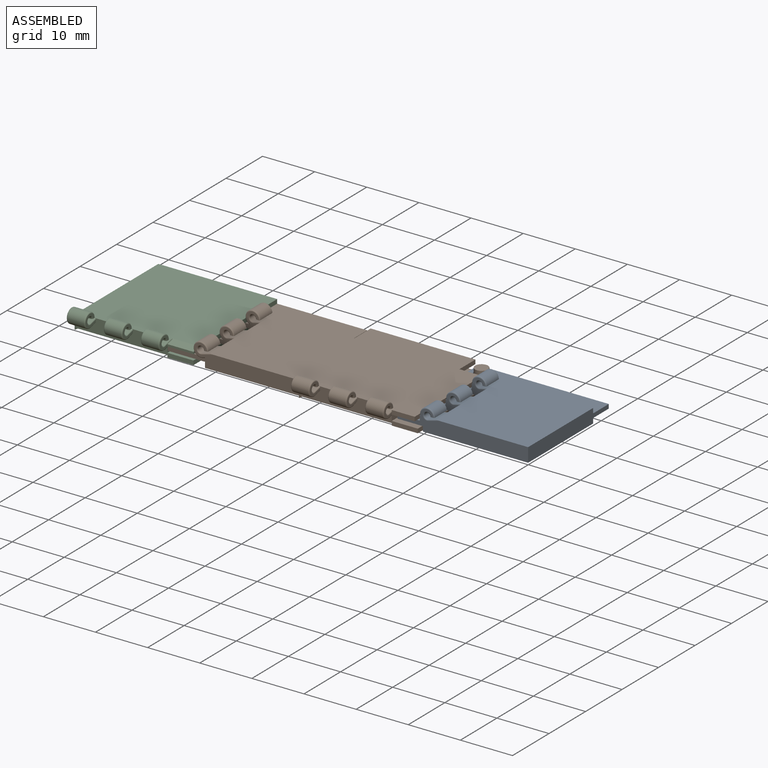
[diagram: assembled view]
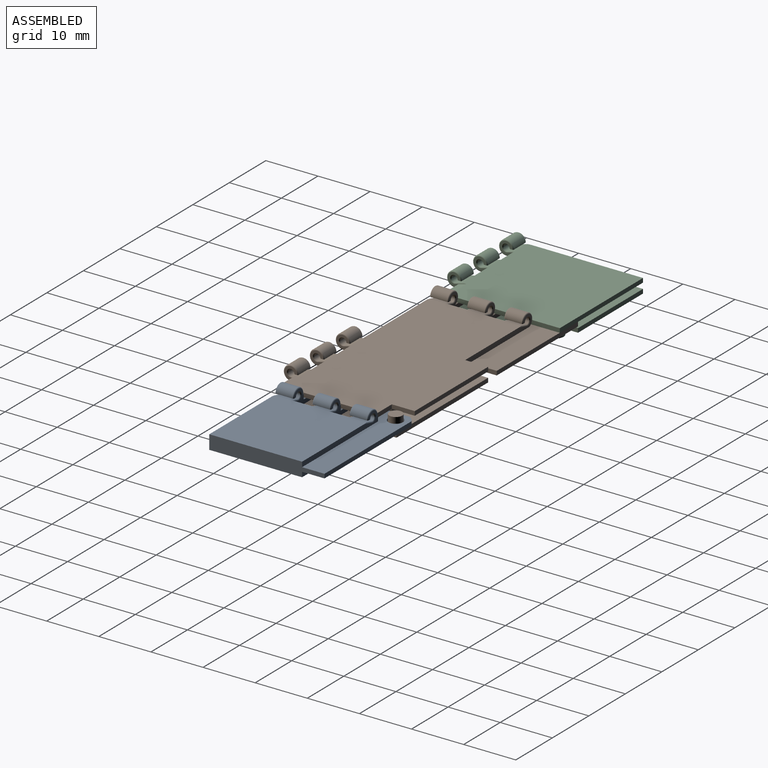
[diagram: assembled view, second angle]
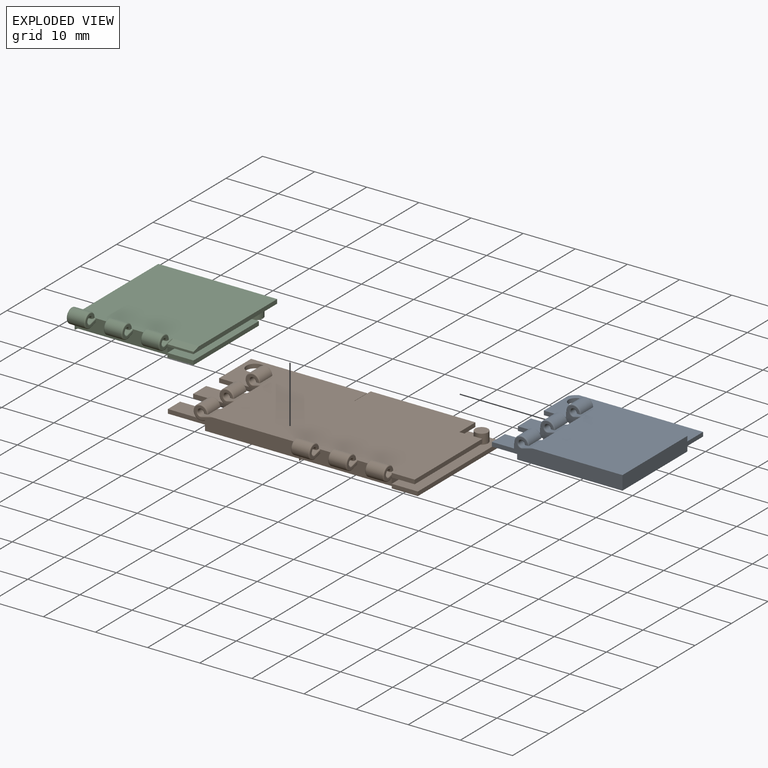
[diagram: exploded view]
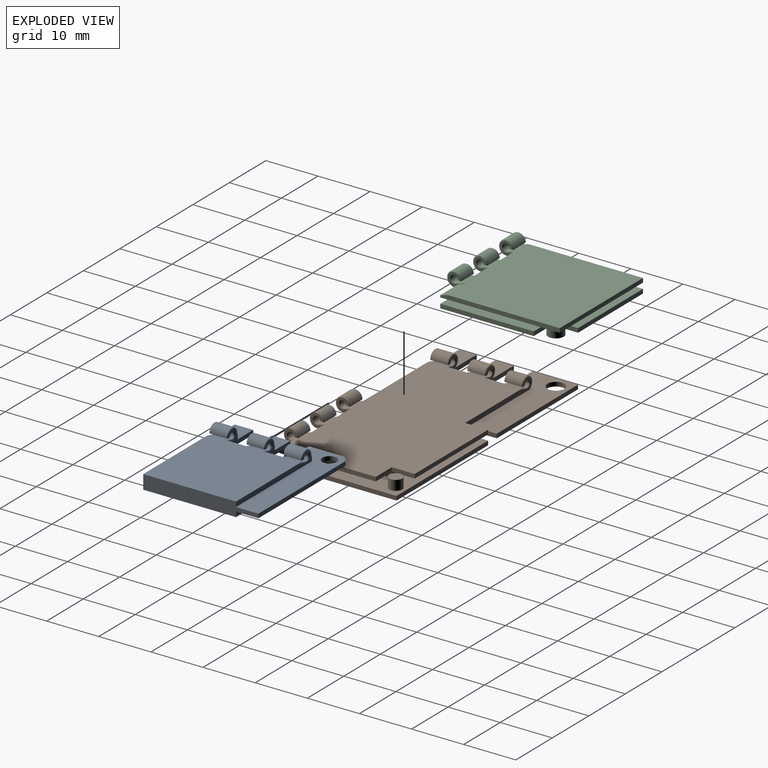
[diagram: exploded view, second angle]
ASSEMBLY  parts=3 mates=2
PART A: 75 faces, bbox 22.1x25.1x4.4 mm
  f0: plane 7.25x4.1mm, normal (-1,0,0), area 11.2mm2, adj f2,f5,f9,f10,f20,f21,f26,f37
  f1: plane 7.25x4.1mm, normal (1,0,0), area 11.2mm2, adj f2,f12,f16,f19,f27,f33,f44,f45
  f2: plane 20.2x17.8mm, normal (0,0,-1), area 342.5mm2, adj f0,f1,f4,f7,f16,f20,f39,f56
  f3: plane 0.14x0.02mm, normal (0,0,-1), area 0mm2, adj f8,f53,f74
  f4: plane 7.25x4.1mm, normal (1,0,0), area 11.2mm2, adj f2,f11,f15,f20,f25,f32,f40,f41
  f5: plane 25.05x7.86mm, normal (0,0,1), area 116.1mm2, adj f0,f6,f7,f14,f66,f67,f70,f71
  f6: cylinder r=2.5mm len=1.27mm, axis (0,0,1), area 1.4mm2, adj f5,f9,f70,f71
  f7: plane 22.1x2.7mm, normal (0,-1,0), area 51.5mm2, adj f2,f5,f9,f13,f14,f39,f59,f71
  f8: plane 7.25x4.1mm, normal (-1,0,0), area 7.1mm2, adj f3,f11,f16,f17,f18,f28,f32,f46
  f9: plane 25.05x7.86mm, normal (0,0,-1), area 118.2mm2, adj f0,f6,f7,f59,f67,f70,f71,f72
  f10: plane 3.58x0.23mm, normal (0,0,1), area 0.1mm2, adj f0,f14,f24,f26,f50,f66
  f11: plane 3.58x0.23mm, normal (0,0,1), area 0.1mm2, adj f4,f8,f22,f25,f28,f63
  f12: plane 3.58x0.23mm, normal (0,0,1), area 0.1mm2, adj f1,f23,f27,f29,f39,f65
  f13: plane 17.8x17.8mm, normal (0,0,1), area 316.8mm2, adj f7,f14,f16,f20,f30,f31,f36,f39
  f14: plane 20.8x2.35mm, normal (1,0,0), area 20mm2, adj f5,f7,f10,f13,f37,f50,f51,f52
  f15: cylinder r=0.2mm len=0.41mm, axis (0,-0.96,0.27), area 0mm2, adj f4,f20,f58
  f16: plane 3.98x2.72mm, normal (0,1,0), area 9.7mm2, adj f1,f2,f8,f13,f18,f19,f45,f47
  f17: torus R=1.2mm, axis (1,0,0), area 0.1mm2, adj f8,f18,f53,f56
  f18: cylinder r=0.2mm len=1.3mm, axis (0,0.96,-0.27), area 0.1mm2, adj f8,f16,f17,f56,f57
  f19: cylinder r=0.2mm len=0.41mm, axis (0,-0.96,0.27), area 0mm2, adj f1,f16,f55
  f20: plane 3.98x2.72mm, normal (0,1,0), area 9.6mm2, adj f0,f2,f4,f13,f15,f21,f40,f43
  f21: cylinder r=0.2mm len=0.41mm, axis (0,0.96,-0.27), area 0mm2, adj f0,f20,f54
  f22: cylinder r=1.4mm len=3.16mm, axis (-1,0,0), area 14.5mm2, adj f11,f25,f28,f32
  f23: cylinder r=1.4mm len=3.16mm, axis (-1,0,0), area 14.5mm2, adj f12,f27,f29,f33
  f24: cylinder r=1.4mm len=3.16mm, axis (-1,0,0), area 14.5mm2, adj f10,f26,f37,f50
  f25: torus R=1.2mm, axis (1,0,0), area 1.4mm2, adj f4,f11,f22,f32
  f26: torus R=1.2mm, axis (1,0,0), area 1.4mm2, adj f0,f10,f24,f37
  f27: torus R=1.2mm, axis (1,0,0), area 1.4mm2, adj f1,f12,f23,f33
  f28: torus R=1.2mm, axis (1,0,0), area 1.4mm2, adj f8,f11,f22,f32
  f29: torus R=1.2mm, axis (1,0,0), area 1.4mm2, adj f12,f23,f33,f39
  f30: plane 3.16x1.45mm, normal (0,0.25,0.97), area 4.7mm2, adj f13,f34,f40,f47
  f31: plane 3.16x1.45mm, normal (0,0.25,0.97), area 4.7mm2, adj f13,f35,f45,f49
  f32: plane 3.56x0.8mm, normal (0,0,-1), area 2.8mm2, adj f4,f8,f22,f25,f28,f34,f41,f46
  f33: plane 3.56x0.8mm, normal (0,0,-1), area 2.8mm2, adj f1,f23,f27,f29,f35,f39,f44,f48
  f34: cylinder r=0.6mm len=3.16mm, axis (-1,0,0), area 9.4mm2, adj f30,f32,f41,f46
  f35: cylinder r=0.6mm len=3.16mm, axis (-1,0,0), area 9.4mm2, adj f31,f33,f44,f48
  f36: plane 3.16x1.45mm, normal (0,0.25,0.97), area 4.7mm2, adj f13,f38,f43,f52
  f37: plane 3.56x0.8mm, normal (0,0,-1), area 2.8mm2, adj f0,f14,f24,f26,f38,f42,f50,f51
  f38: cylinder r=0.6mm len=3.16mm, axis (-1,0,0), area 9.4mm2, adj f36,f37,f42,f51
  f39: plane 25.05x4.1mm, normal (-1,0,0), area 59.2mm2, adj f2,f7,f12,f13,f29,f33,f48,f49
  f40: cylinder r=0.2mm len=1.5mm, axis (0,0.97,-0.25), area 0.5mm2, adj f4,f20,f30,f41
  f41: torus R=0.8mm, axis (1,0,0), area 1mm2, adj f4,f32,f34,f40
  f42: torus R=0.8mm, axis (1,0,0), area 1mm2, adj f0,f37,f38,f43
  f43: cylinder r=0.2mm len=1.5mm, axis (0,-0.97,0.25), area 0.5mm2, adj f0,f20,f36,f42
  f44: torus R=0.8mm, axis (1,0,0), area 1mm2, adj f1,f33,f35,f45
  f45: cylinder r=0.2mm len=1.5mm, axis (0,0.97,-0.25), area 0.5mm2, adj f1,f16,f31,f44
  f46: torus R=0.8mm, axis (1,0,0), area 1mm2, adj f8,f32,f34,f47
  f47: cylinder r=0.2mm len=1.5mm, axis (0,-0.97,0.25), area 0.5mm2, adj f8,f16,f30,f46
  f48: torus R=0.8mm, axis (1,0,0), area 1mm2, adj f33,f35,f39,f49
  f49: cylinder r=0.2mm len=2.23mm, axis (0,-0.97,0.25), area 0.6mm2, adj f13,f31,f39,f48
  f50: torus R=1.2mm, axis (1,0,0), area 1.4mm2, adj f10,f14,f24,f37
  f51: torus R=0.8mm, axis (1,0,0), area 1mm2, adj f14,f37,f38,f52
  f52: cylinder r=0.2mm len=2.23mm, axis (0,0.97,-0.25), area 0.6mm2, adj f13,f14,f36,f51
  f53: extruded ~1.9x0.13mm, area 0.2mm2, adj f3,f8,f17,f56
  f54: plane 0.39x0.04mm, normal (0,0,1), area 0mm2, adj f0,f20,f21
  f55: plane 0.39x0.04mm, normal (0,0,1), area 0mm2, adj f1,f16,f19
  f56: plane 2.4x2mm, normal (-1,0,0), area 4.2mm2, adj f2,f16,f17,f18,f53,f57
  f57: plane 0.11x0.02mm, normal (0,0,1), area 0mm2, adj f16,f18,f56
  f58: plane 0.39x0.04mm, normal (0,0,1), area 0mm2, adj f4,f15,f20
  f59: plane 20.2x0.95mm, normal (1,0,0), area 19.2mm2, adj f2,f7,f9,f72
  f60: plane 4.85x3.56mm, normal (0,0,-1), area 17.3mm2, adj f1,f39,f68,f73
  f61: plane 4.85x3.56mm, normal (0,0,-1), area 17.3mm2, adj f4,f8,f69,f74
  f62: plane 4.25x3.56mm, normal (0,0,1), area 15.1mm2, adj f4,f8,f63,f69
  f63: plane 3.56x0.95mm, normal (0,1,0), area 3.4mm2, adj f4,f8,f11,f62
  f64: plane 4.25x3.56mm, normal (0,0,1), area 15.1mm2, adj f1,f39,f65,f68
  f65: plane 3.56x0.95mm, normal (0,1,0), area 3.4mm2, adj f1,f12,f39,f64
  f66: plane 3.56x0.95mm, normal (0,1,0), area 3.4mm2, adj f0,f5,f10,f14
  f67: cylinder r=1.4mm len=2.8mm, axis (0,0,1), area 7mm2, adj f5,f9
  f68: plane 3.56x0.8mm, normal (0,1,0), area 2.8mm2, adj f1,f39,f60,f64
  f69: plane 3.56x0.8mm, normal (0,1,0), area 2.8mm2, adj f4,f8,f61,f62
  f70: plane 6.65x0.8mm, normal (0,1,0), area 5.3mm2, adj f0,f5,f6,f9
  f71: plane 23.78x0.8mm, normal (1,0,0), area 19mm2, adj f5,f6,f7,f9
  f72: plane 3.56x0.95mm, normal (0,1,0), area 3.4mm2, adj f0,f2,f9,f59
  f73: plane 3.56x0.95mm, normal (0,1,0), area 3.4mm2, adj f1,f2,f39,f60
  f74: plane 3.56x0.95mm, normal (0,1,0), area 3.4mm2, adj f2,f3,f4,f8,f61
PART B: 133 faces, bbox 48.9x26.4x4.7 mm
  f0: extruded ~0.95x0.73mm, area 0.8mm2, adj f70,f84,f105,f123
  f1: plane 25.09x0.8mm, normal (0,-1,0), area 20.1mm2, adj f105,f108,f111,f125
  f2: plane 20.09x4.4mm, normal (0,0,-1), area 88.4mm2, adj f3,f22,f70,f124
  f3: plane 20.09x0.8mm, normal (0,-1,0), area 16.1mm2, adj f2,f4,f22,f124
  f4: plane 40x22.93mm, normal (0,0,1), area 803.5mm2, adj f3,f19,f21,f22,f25,f26,f35,f43
  f5: plane 3.16x0.53mm, normal (-0.27,0,-0.96), area 1.7mm2, adj f8,f84,f96,f122
  f6: cylinder r=1.4mm len=3.16mm, axis (0,-1,0), area 18.1mm2, adj f7,f75,f95,f122
  f7: torus R=1.2mm, axis (0,1,0), area 1.8mm2, adj f6,f75,f83,f122
  f8: cylinder r=0.2mm len=1.31mm, axis (-0.96,0,0.27), area 0.3mm2, adj f5,f83,f84,f122
  f9: plane 3.16x0.53mm, normal (-0.27,0,-0.96), area 1.7mm2, adj f12,f84,f100,f120
  f10: cylinder r=1.4mm len=3.16mm, axis (0,-1,0), area 18.1mm2, adj f11,f79,f99,f118
  f11: torus R=1.2mm, axis (0,1,0), area 1.8mm2, adj f10,f79,f85,f118
  f12: cylinder r=0.2mm len=1.31mm, axis (0.96,0,-0.27), area 0.3mm2, adj f9,f84,f85,f120
  f13: plane 3.16x0.53mm, normal (-0.27,0,-0.96), area 1.7mm2, adj f16,f18,f84,f116
  f14: cylinder r=1.4mm len=3.16mm, axis (0,-1,0), area 18.1mm2, adj f15,f17,f74,f115
  f15: torus R=1.2mm, axis (0,1,0), area 1.8mm2, adj f14,f74,f86,f115
  f16: cylinder r=0.2mm len=1.31mm, axis (-0.96,0,0.27), area 0.3mm2, adj f13,f84,f86,f116
  f17: torus R=1.2mm, axis (0,1,0), area 1.8mm2, adj f14,f74,f82,f115
  f18: cylinder r=0.2mm len=1.31mm, axis (0.96,0,-0.27), area 0.3mm2, adj f13,f82,f84,f116
  f19: plane 4.4x0.8mm, normal (0,1,0), area 3.5mm2, adj f4,f20,f23,f109,f114
  f20: plane 18.53x4.4mm, normal (0,0,-1), area 81.5mm2, adj f19,f21,f40,f114
  f21: plane 4.4x0.8mm, normal (0,-1,0), area 3.5mm2, adj f4,f20,f22,f114
  f22: plane 4.4x0.8mm, normal (-1,0,0), area 3.5mm2, adj f2,f3,f4,f21
  f23: plane 2.4x2.4mm, normal (-1,0,0), area 2.2mm2, adj f19,f32,f62,f63,f64,f65
  f24: plane 4.1x2.8mm, normal (1,0,0), area 4mm2, adj f38,f66,f67,f68,f69,f81,f104,f105
  f25: plane 3.16x1.45mm, normal (0,0.25,0.97), area 4.7mm2, adj f4,f33,f48,f59
  f26: plane 3.16x1.45mm, normal (0,0.25,0.97), area 4.7mm2, adj f4,f34,f61,f65
  f27: plane 3.16x1.22mm, normal (0,-0.27,-0.96), area 4mm2, adj f29,f43,f51,f53
  f28: plane 3.16x1.22mm, normal (0,-0.27,-0.96), area 4mm2, adj f30,f43,f55,f63
  f29: cylinder r=1.4mm len=3.16mm, axis (-1,0,0), area 22mm2, adj f27,f31,f50,f52
  f30: cylinder r=1.4mm len=3.16mm, axis (-1,0,0), area 22mm2, adj f28,f32,f54,f62
  f31: plane 3.56x0.8mm, normal (0,0,-1), area 2.8mm2, adj f29,f33,f41,f45,f49,f50,f52,f58
  f32: plane 3.56x0.8mm, normal (0,0,-1), area 2.8mm2, adj f23,f30,f34,f42,f54,f60,f62,f64
  f33: cylinder r=0.6mm len=3.16mm, axis (-1,0,0), area 9.4mm2, adj f25,f31,f49,f58
  f34: cylinder r=0.6mm len=3.16mm, axis (-1,0,0), area 9.4mm2, adj f26,f32,f60,f64
  f35: plane 3.16x1.45mm, normal (0,0.25,0.97), area 4.7mm2, adj f4,f39,f57,f69
  f36: plane 3.16x1.22mm, normal (0,-0.27,-0.96), area 4mm2, adj f37,f43,f47,f67
  f37: cylinder r=1.4mm len=3.16mm, axis (-1,0,0), area 22mm2, adj f36,f38,f46,f66
  f38: plane 3.56x0.8mm, normal (0,0,-1), area 2.8mm2, adj f24,f37,f39,f44,f46,f56,f66,f68
  f39: cylinder r=0.6mm len=3.16mm, axis (-1,0,0), area 9.4mm2, adj f35,f38,f56,f68
  f40: plane 18.53x1.1mm, normal (-1,0,0), area 20.4mm2, adj f20,f70,f103,f108
  f41: plane 2.8x2.4mm, normal (-1,0,0), area 2.5mm2, adj f31,f43,f52,f53,f58,f59
  f42: plane 2.8x2.4mm, normal (1,0,0), area 2.5mm2, adj f32,f43,f54,f55,f60,f61
  f43: plane 17.42x2.72mm, normal (0,1,0), area 38.8mm2, adj f4,f27,f28,f36,f41,f42,f44,f45
  f44: plane 2.8x2.4mm, normal (-1,0,0), area 2.5mm2, adj f38,f43,f46,f47,f56,f57
  f45: plane 2.8x2.4mm, normal (1,0,0), area 2.5mm2, adj f31,f43,f48,f49,f50,f51
  f46: torus R=1.2mm, axis (1,0,0), area 2.1mm2, adj f37,f38,f44,f47
  f47: cylinder r=0.2mm len=1.33mm, axis (0,0.96,-0.27), area 0.4mm2, adj f36,f43,f44,f46
  f48: cylinder r=0.2mm len=1.5mm, axis (0,0.97,-0.25), area 0.5mm2, adj f25,f43,f45,f49
  f49: torus R=0.8mm, axis (1,0,0), area 1mm2, adj f31,f33,f45,f48
  f50: torus R=1.2mm, axis (1,0,0), area 2.1mm2, adj f29,f31,f45,f51
  f51: cylinder r=0.2mm len=1.33mm, axis (0,-0.96,0.27), area 0.4mm2, adj f27,f43,f45,f50
  f52: torus R=1.2mm, axis (1,0,0), area 2.1mm2, adj f29,f31,f41,f53
  f53: cylinder r=0.2mm len=1.33mm, axis (0,0.96,-0.27), area 0.4mm2, adj f27,f41,f43,f52
  f54: torus R=1.2mm, axis (1,0,0), area 2.1mm2, adj f30,f32,f42,f55
  f55: cylinder r=0.2mm len=1.33mm, axis (0,-0.96,0.27), area 0.4mm2, adj f28,f42,f43,f54
  f56: torus R=0.8mm, axis (1,0,0), area 1mm2, adj f38,f39,f44,f57
  f57: cylinder r=0.2mm len=1.5mm, axis (0,-0.97,0.25), area 0.5mm2, adj f35,f43,f44,f56
  f58: torus R=0.8mm, axis (1,0,0), area 1mm2, adj f31,f33,f41,f59
  f59: cylinder r=0.2mm len=1.5mm, axis (0,-0.97,0.25), area 0.5mm2, adj f25,f41,f43,f58
  f60: torus R=0.8mm, axis (1,0,0), area 1mm2, adj f32,f34,f42,f61
  f61: cylinder r=0.2mm len=1.5mm, axis (0,0.97,-0.25), area 0.5mm2, adj f26,f42,f43,f60
  f62: torus R=1.2mm, axis (1,0,0), area 2.1mm2, adj f23,f30,f32,f63
  f63: cylinder r=0.2mm len=1.27mm, axis (0,0.96,-0.27), area 0.3mm2, adj f23,f28,f62,f103
  f64: torus R=0.8mm, axis (1,0,0), area 1mm2, adj f23,f32,f34,f65
  f65: cylinder r=0.2mm len=2.23mm, axis (0,-0.97,0.25), area 0.6mm2, adj f4,f23,f26,f64,f109
  f66: torus R=1.2mm, axis (1,0,0), area 2.1mm2, adj f24,f37,f38,f67
  f67: cylinder r=0.2mm len=1.27mm, axis (0,-0.96,0.27), area 0.3mm2, adj f24,f36,f66,f104
  f68: torus R=0.8mm, axis (1,0,0), area 1mm2, adj f24,f38,f39,f69
  f69: cylinder r=0.2mm len=2.23mm, axis (0,0.97,-0.25), area 0.6mm2, adj f4,f24,f35,f68,f71
  f70: plane 38.4x4.1mm, normal (0,-1,0), area 55.8mm2, adj f0,f2,f4,f40,f75,f95,f96,f97
  f71: plane 0.79x0.21mm, normal (-1,0,0), area 0.1mm2, adj f4,f69,f81
  f72: plane 3.16x1.45mm, normal (0.25,0,0.97), area 4.7mm2, adj f4,f76,f87,f92
  f73: plane 3.16x1.45mm, normal (0.25,0,0.97), area 4.7mm2, adj f4,f77,f94,f98
  f74: plane 3.56x0.8mm, normal (0,0,-1), area 2.8mm2, adj f14,f15,f17,f76,f82,f86,f88,f91
  f75: plane 3.56x0.8mm, normal (0,0,-1), area 2.8mm2, adj f6,f7,f70,f77,f83,f93,f95,f97
  f76: cylinder r=0.6mm len=3.16mm, axis (0,-1,0), area 9.4mm2, adj f72,f74,f88,f91
  f77: cylinder r=0.6mm len=3.16mm, axis (0,-1,0), area 9.4mm2, adj f73,f75,f93,f97
  f78: plane 3.16x1.45mm, normal (0.25,0,0.97), area 4.7mm2, adj f4,f80,f90,f102
  f79: plane 3.56x0.8mm, normal (0,0,-1), area 2.8mm2, adj f10,f11,f80,f81,f85,f89,f99,f101
  f80: cylinder r=0.6mm len=3.16mm, axis (0,-1,0), area 9.4mm2, adj f78,f79,f89,f101
  f81: plane 20.6x4.1mm, normal (0,1,0), area 52mm2, adj f4,f24,f71,f79,f99,f100,f101,f102
  f82: plane 8x3.15mm, normal (0,-1,0), area 8.9mm2, adj f17,f18,f74,f84,f91,f92,f115,f116
  f83: plane 8x3.15mm, normal (0,1,0), area 8.9mm2, adj f7,f8,f75,f84,f93,f94,f122,f123
  f84: plane 17.42x2.72mm, normal (1,0,0), area 30.6mm2, adj f0,f4,f5,f8,f9,f12,f13,f16
  f85: plane 8x3.15mm, normal (0,-1,0), area 8.9mm2, adj f11,f12,f79,f84,f89,f90,f118,f120
  f86: plane 8x3.15mm, normal (0,1,0), area 8.9mm2, adj f15,f16,f74,f84,f87,f88,f115,f116
  f87: cylinder r=0.2mm len=1.5mm, axis (0.97,0,-0.25), area 0.5mm2, adj f72,f84,f86,f88
  f88: torus R=0.8mm, axis (0,1,0), area 1mm2, adj f74,f76,f86,f87
  f89: torus R=0.8mm, axis (0,1,0), area 1mm2, adj f79,f80,f85,f90
  f90: cylinder r=0.2mm len=1.5mm, axis (-0.97,0,0.25), area 0.5mm2, adj f78,f84,f85,f89
  f91: torus R=0.8mm, axis (0,1,0), area 1mm2, adj f74,f76,f82,f92
  f92: cylinder r=0.2mm len=1.5mm, axis (-0.97,0,0.25), area 0.5mm2, adj f72,f82,f84,f91
  f93: torus R=0.8mm, axis (0,1,0), area 1mm2, adj f75,f77,f83,f94
  f94: cylinder r=0.2mm len=1.5mm, axis (0.97,0,-0.25), area 0.5mm2, adj f73,f83,f84,f93
  f95: torus R=1.2mm, axis (0,1,0), area 1.8mm2, adj f6,f70,f75,f122
  f96: cylinder r=0.2mm len=1.26mm, axis (0.96,0,-0.27), area 0.2mm2, adj f5,f70,f107,f122
  f97: torus R=0.8mm, axis (0,1,0), area 1mm2, adj f70,f75,f77,f98
  f98: cylinder r=0.2mm len=2.23mm, axis (-0.97,0,0.25), area 0.6mm2, adj f4,f70,f73,f97
  f99: torus R=1.2mm, axis (0,1,0), area 2.1mm2, adj f10,f79,f81,f100,f119
  f100: cylinder r=0.2mm len=1.27mm, axis (-0.96,0,0.27), area 0.3mm2, adj f9,f81,f99,f106,f119
  f101: torus R=0.8mm, axis (0,1,0), area 1mm2, adj f79,f80,f81,f102
  f102: cylinder r=0.2mm len=2.23mm, axis (0.97,0,-0.25), area 0.6mm2, adj f4,f78,f81,f101
  f103: extruded ~1.9x0.73mm, area 1.5mm2, adj f40,f43,f63,f105,f110
  f104: extruded ~1.9x0.73mm, area 1.5mm2, adj f24,f43,f67,f105
  f105: plane 41.33x22.93mm, normal (0,0,-1), area 836.9mm2, adj f0,f1,f24,f43,f70,f81,f84,f103
  f106: extruded ~1.9x0.73mm, area 1.5mm2, adj f81,f84,f100,f105,f119
  f107: extruded ~0.73x0.2mm, area 0.1mm2, adj f70,f84,f96,f122
  f108: plane 25.09x22.93mm, normal (0,0,1), area 198.2mm2, adj f1,f40,f70,f110,f111,f112,f125
  f109: plane 1.52x0.4mm, normal (1,0,0), area 0.3mm2, adj f4,f19,f65
  f110: plane 5x0.8mm, normal (0,1,0), area 4mm2, adj f103,f105,f108,f111
  f111: plane 22.93x0.8mm, normal (-1,0,0), area 18.3mm2, adj f1,f105,f108,f110
  f112: cylinder r=1.25mm len=2.5mm, axis (0,0,-1), area 14.9mm2, adj f108,f113
  f113: plane 2.5x2.5mm, normal (0,0,1), area 4.9mm2, adj f112
  f114: plane 18.53x0.8mm, normal (-1,0,0), area 14.8mm2, adj f4,f19,f20,f21
  f115: plane 6.21x3.71mm, normal (0,0,1), area 20mm2, adj f14,f15,f17,f82,f86,f129
  f116: plane 3.56x1.26mm, normal (0,0,1), area 1.9mm2, adj f13,f16,f18,f82,f84,f86
  f117: plane 8x3.56mm, normal (0,0,-1), area 28.5mm2, adj f82,f84,f86,f129
  f118: plane 6.21x3.51mm, normal (0,0,1), area 18.8mm2, adj f10,f11,f85,f119,f130
  f119: plane 8x0.8mm, normal (0,1,0), area 6.1mm2, adj f99,f100,f106,f118,f120,f121,f130
  f120: plane 3.36x1.26mm, normal (0,0,1), area 1.8mm2, adj f9,f12,f84,f85,f119
  f121: plane 8x3.36mm, normal (0,0,-1), area 26.9mm2, adj f84,f85,f119,f130
  f122: plane 22.57x9.06mm, normal (0,0,1), area 129.1mm2, adj f5,f6,f7,f8,f70,f83,f84,f95
  f123: plane 22.27x8.76mm, normal (0,0,-1), area 135.7mm2, adj f0,f70,f83,f84,f126,f127,f128,f131
  f124: plane 4.4x0.8mm, normal (1,0,0), area 3.5mm2, adj f2,f3,f4,f70
  f125: plane 4.4x0.8mm, normal (1,0,0), area 3.5mm2, adj f1,f70,f105,f108
  f126: plane 5.2x0.8mm, normal (-1,0,0), area 4.2mm2, adj f70,f122,f123,f127
  f127: plane 22.27x0.8mm, normal (0,-1,0), area 17.8mm2, adj f122,f123,f126,f132
  f128: cylinder r=1.65mm len=3.3mm, axis (0,0,1), area 8.3mm2, adj f122,f123
  f129: plane 3.56x0.8mm, normal (1,0,0), area 2.8mm2, adj f82,f86,f115,f117
  f130: plane 3.36x0.8mm, normal (1,0,0), area 2.7mm2, adj f85,f118,f119,f121
  f131: plane 3.36x0.8mm, normal (1,0,0), area 2.7mm2, adj f83,f122,f123,f132
  f132: plane 5.4x0.8mm, normal (1,0,0), area 4.3mm2, adj f122,f123,f127,f131
PART C: 66 faces, bbox 22.8x25.3x4.4 mm
  f0: plane 17.8x5mm, normal (0,0,1), area 89mm2, adj f2,f3,f61,f62
  f1: plane 17.93x5mm, normal (0,0,1), area 89.7mm2, adj f56,f58,f60,f63
  f2: plane 17.8x0.8mm, normal (0,-1,0), area 14.2mm2, adj f0,f3,f54,f62
  f3: plane 25x4.1mm, normal (1,0,0), area 58.3mm2, adj f0,f2,f17,f20,f48,f49,f50,f51
  f4: plane 5x0.4mm, normal (0,1,0), area 2mm2, adj f5,f22,f57,f59
  f5: plane 22.93x0.8mm, normal (-1,0,0), area 18mm2, adj f4,f17,f55,f57,f59
  f6: plane 3.16x1.45mm, normal (0,0.25,0.97), area 4.7mm2, adj f14,f17,f30,f41
  f7: plane 3.16x1.45mm, normal (0,0.25,0.97), area 4.7mm2, adj f15,f17,f43,f47
  f8: plane 3.16x1.22mm, normal (0,-0.27,-0.96), area 4mm2, adj f10,f25,f33,f35
  f9: plane 3.16x1.22mm, normal (0,-0.27,-0.96), area 4mm2, adj f11,f25,f37,f45
  f10: cylinder r=1.4mm len=3.16mm, axis (-1,0,0), area 22mm2, adj f8,f12,f32,f34
  f11: cylinder r=1.4mm len=3.16mm, axis (-1,0,0), area 22mm2, adj f9,f13,f36,f44
  f12: plane 3.56x0.8mm, normal (0,0,-1), area 2.8mm2, adj f10,f14,f23,f27,f31,f32,f34,f40
  f13: plane 3.56x0.8mm, normal (0,0,-1), area 2.8mm2, adj f11,f15,f22,f24,f36,f42,f44,f46
  f14: cylinder r=0.6mm len=3.16mm, axis (-1,0,0), area 9.4mm2, adj f6,f12,f31,f40
  f15: cylinder r=0.6mm len=3.16mm, axis (-1,0,0), area 9.4mm2, adj f7,f13,f42,f46
  f16: plane 3.16x1.45mm, normal (0,0.25,0.97), area 4.7mm2, adj f17,f21,f39,f51
  f17: plane 22.8x22.2mm, normal (0,0,1), area 502.2mm2, adj f3,f5,f6,f7,f16,f25,f47,f51
  f18: plane 3.16x1.22mm, normal (0,-0.27,-0.96), area 4mm2, adj f19,f25,f29,f49
  f19: cylinder r=1.4mm len=3.16mm, axis (-1,0,0), area 22mm2, adj f18,f20,f28,f48
  f20: plane 3.56x0.8mm, normal (0,0,-1), area 2.8mm2, adj f3,f19,f21,f26,f28,f38,f48,f50
  f21: cylinder r=0.6mm len=3.16mm, axis (-1,0,0), area 9.4mm2, adj f16,f20,f38,f50
  f22: plane 2.4x2.4mm, normal (-1,0,0), area 2.2mm2, adj f4,f13,f44,f45,f46,f47
  f23: plane 2.8x2.4mm, normal (-1,0,0), area 2.5mm2, adj f12,f25,f34,f35,f40,f41
  f24: plane 2.8x2.4mm, normal (1,0,0), area 2.5mm2, adj f13,f25,f36,f37,f42,f43
  f25: plane 17.4x2.7mm, normal (0,1,0), area 38.8mm2, adj f8,f9,f17,f18,f23,f24,f26,f27
  f26: plane 2.8x2.4mm, normal (-1,0,0), area 2.5mm2, adj f20,f25,f28,f29,f38,f39
  f27: plane 2.8x2.4mm, normal (1,0,0), area 2.5mm2, adj f12,f25,f30,f31,f32,f33
  f28: torus R=1.2mm, axis (1,0,0), area 2.1mm2, adj f19,f20,f26,f29
  f29: cylinder r=0.2mm len=1.33mm, axis (0,0.96,-0.27), area 0.4mm2, adj f18,f25,f26,f28
  f30: cylinder r=0.2mm len=1.5mm, axis (0,0.97,-0.25), area 0.5mm2, adj f6,f25,f27,f31
  f31: torus R=0.8mm, axis (1,0,0), area 1mm2, adj f12,f14,f27,f30
  f32: torus R=1.2mm, axis (1,0,0), area 2.1mm2, adj f10,f12,f27,f33
  f33: cylinder r=0.2mm len=1.33mm, axis (0,-0.96,0.27), area 0.4mm2, adj f8,f25,f27,f32
  f34: torus R=1.2mm, axis (1,0,0), area 2.1mm2, adj f10,f12,f23,f35
  f35: cylinder r=0.2mm len=1.33mm, axis (0,0.96,-0.27), area 0.4mm2, adj f8,f23,f25,f34
  f36: torus R=1.2mm, axis (1,0,0), area 2.1mm2, adj f11,f13,f24,f37
  f37: cylinder r=0.2mm len=1.33mm, axis (0,-0.96,0.27), area 0.4mm2, adj f9,f24,f25,f36
  f38: torus R=0.8mm, axis (1,0,0), area 1mm2, adj f20,f21,f26,f39
  f39: cylinder r=0.2mm len=1.5mm, axis (0,-0.97,0.25), area 0.5mm2, adj f16,f25,f26,f38
  f40: torus R=0.8mm, axis (1,0,0), area 1mm2, adj f12,f14,f23,f41
  f41: cylinder r=0.2mm len=1.5mm, axis (0,-0.97,0.25), area 0.5mm2, adj f6,f23,f25,f40
  f42: torus R=0.8mm, axis (1,0,0), area 1mm2, adj f13,f15,f24,f43
  f43: cylinder r=0.2mm len=1.5mm, axis (0,0.97,-0.25), area 0.5mm2, adj f7,f24,f25,f42
  f44: torus R=1.2mm, axis (1,0,0), area 2.1mm2, adj f11,f13,f22,f45
  f45: cylinder r=0.2mm len=1.27mm, axis (0,0.96,-0.27), area 0.3mm2, adj f9,f22,f44,f52
  f46: torus R=0.8mm, axis (1,0,0), area 1mm2, adj f13,f15,f22,f47
  f47: cylinder r=0.2mm len=2.23mm, axis (0,-0.97,0.25), area 0.6mm2, adj f7,f17,f22,f46,f57
  f48: torus R=1.2mm, axis (1,0,0), area 2.1mm2, adj f3,f19,f20,f49
  f49: cylinder r=0.2mm len=1.27mm, axis (0,-0.96,0.27), area 0.3mm2, adj f3,f18,f48,f53
  f50: torus R=0.8mm, axis (1,0,0), area 1mm2, adj f3,f20,f21,f51
  f51: cylinder r=0.2mm len=2.23mm, axis (0,0.97,-0.25), area 0.6mm2, adj f3,f16,f17,f50
  f52: extruded ~1.9x0.73mm, area 1.5mm2, adj f25,f45,f54,f56,f60
  f53: extruded ~1.9x0.73mm, area 1.5mm2, adj f3,f25,f49,f54
  f54: plane 22.93x22.8mm, normal (0,0,-1), area 484.9mm2, adj f2,f3,f25,f52,f53,f56,f58,f62
  f55: plane 22.8x0.8mm, normal (0,-1,0), area 18.2mm2, adj f3,f5,f17,f59
  f56: plane 5x0.8mm, normal (0,1,0), area 4mm2, adj f1,f52,f54,f58
  f57: plane 5x1.52mm, normal (0,0.25,0.97), area 7.8mm2, adj f4,f5,f17,f47
  f58: plane 17.93x0.8mm, normal (-1,0,0), area 14.3mm2, adj f1,f54,f56,f63
  f59: plane 22.93x22.8mm, normal (0,0,-1), area 196.6mm2, adj f3,f4,f5,f55,f60,f61,f64
  f60: plane 17.93x1.1mm, normal (-1,0,0), area 19.7mm2, adj f1,f52,f59,f61
  f61: plane 17.8x1.1mm, normal (0,-1,0), area 19.6mm2, adj f0,f3,f59,f60
  f62: plane 5x0.8mm, normal (-1,0,0), area 4mm2, adj f0,f2,f54,f63
  f63: plane 5x0.8mm, normal (0,-1,0), area 4mm2, adj f1,f54,f58,f62
  f64: cylinder r=1.5mm len=3mm, axis (0,0,1), area 17.9mm2, adj f59,f65
  f65: plane 3x3mm, normal (0,0,-1), area 7.1mm2, adj f64
PLACE A rot(axis=(0,0,1),90deg) t=(66.66,-30.69,-6.03)mm
PLACE B rot(axis=(0,0,1),180deg) t=(59.16,-31.19,-5.88)mm
PLACE C rot(axis=(0,0,-1),180deg) t=(15.56,-30.39,-6.03)mm
MATE revolute A.f6 <-> B.f112  axis (0,0,-1) through (61.66,-10.89,-7.78)mm
MATE revolute C.f64 <-> B.f128  axis (0,0,1) through (18.06,-10.69,-6.83)mm
